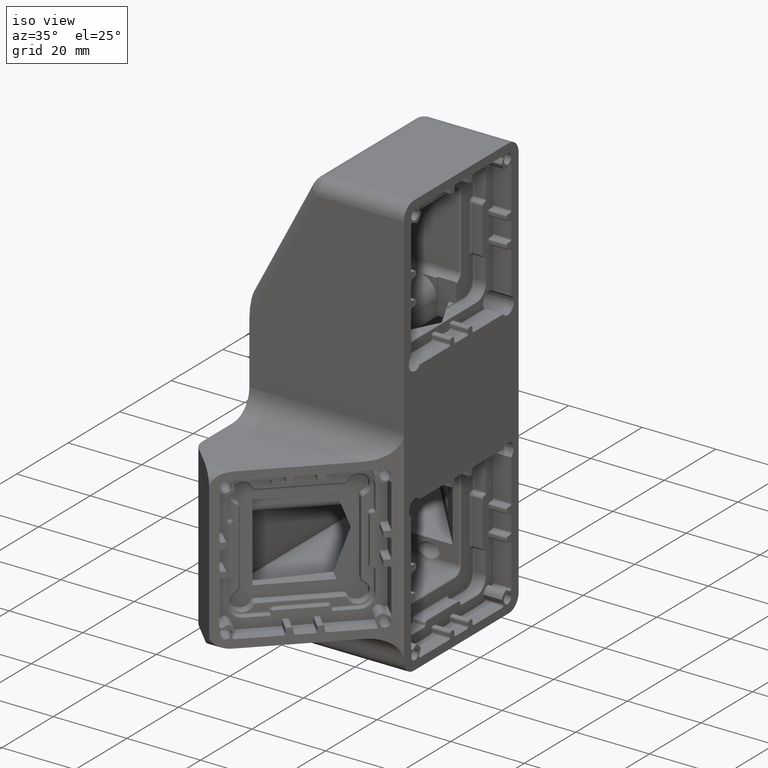
[diagram: clean part render]
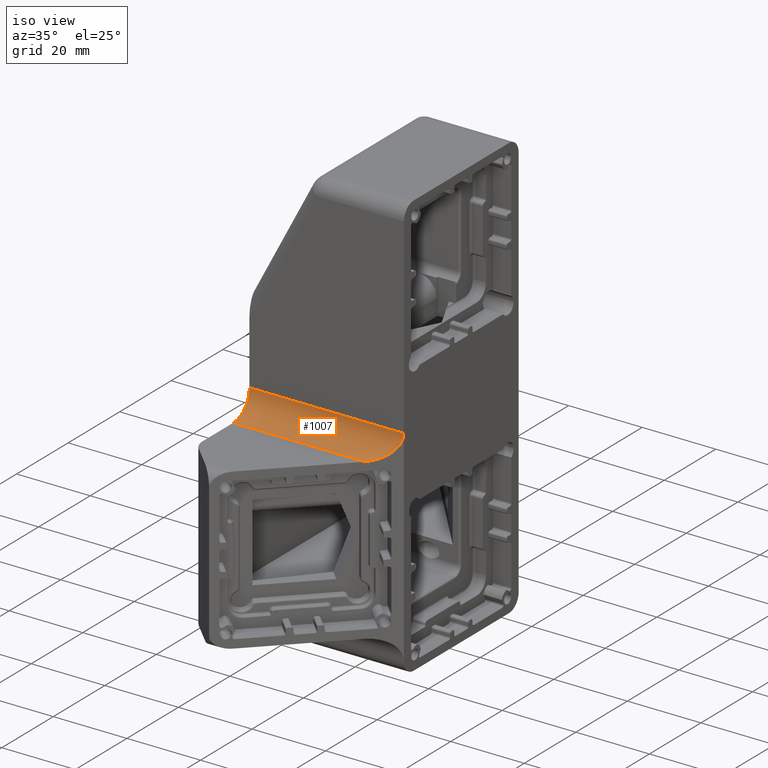
[diagram: same view with one face highlighted and labeled with its STEP entity id]
A machine part, iso view. The second image highlights one B-rep face of the part: STEP entity #1007.
In plain terms, the highlighted cylindrical surface (edge-blend (fillet) strip) has radius 6.25 mm, axis along (1, 0, 0).
Its self-contained STEP definition (entity closure, byte-faithful):
#1007=ADVANCED_FACE('',(#2103),#10574,.F.);
#2103=FACE_OUTER_BOUND('',#3199,.F.);
#3199=EDGE_LOOP('',(#4378,#4379,#4380,#4381));
#4378=ORIENTED_EDGE('',*,*,#14764,.F.);
#4379=ORIENTED_EDGE('',*,*,#14745,.F.);
#4380=ORIENTED_EDGE('',*,*,#14765,.T.);
#4381=ORIENTED_EDGE('',*,*,#14720,.F.);
#10574=CYLINDRICAL_SURFACE('',#24535,6.25);
#13299=B_SPLINE_CURVE_WITH_KNOTS('',3,(#34827,#34828,#34829,#34830,#34831,
#34832,#34833,#34834,#34835,#34836,#34837,#34838,#34839),.UNSPECIFIED.,.F.,
 .F.,(4,1,1,1,1,1,1,1,1,1,4),(0.,0.11673888254205,0.200106161151151,0.300138022496626,
0.400159954280286,0.500167321971055,0.600157109449256,0.700119458751657,
0.800044179004802,0.883328271425402,1.),.UNSPECIFIED.);
#13381=CIRCLE('',#23334,6.25);
#14720=EDGE_CURVE('',#23099,#23098,#13299,.T.);
#14745=EDGE_CURVE('',#23076,#23075,#13381,.T.);
#14764=EDGE_CURVE('',#23075,#23099,#17780,.T.);
#14765=EDGE_CURVE('',#23076,#23098,#17781,.T.);
#17780=LINE('',#34973,#19562);
#17781=LINE('',#34974,#19563);
#19562=VECTOR('',#25776,35.7500020317103);
#19563=VECTOR('',#25777,42.);
#23075=VERTEX_POINT('',#33859);
#23076=VERTEX_POINT('',#33860);
#23098=VERTEX_POINT('',#33882);
#23099=VERTEX_POINT('',#33883);
#23334=AXIS2_PLACEMENT_3D('',#34954,#25754,#25755);
#24535=AXIS2_PLACEMENT_3D('',#38614,#29863,#29864);
#25754=DIRECTION('',(-1.,0.,0.));
#25755=DIRECTION('',(0.,1.,0.));
#25776=DIRECTION('',(1.,0.,0.));
#25777=DIRECTION('',(1.,0.,0.));
#29863=DIRECTION('',(1.,0.,0.));
#29864=DIRECTION('',(0.,0.,-1.));
#33859=CARTESIAN_POINT('',(32.8649997447713,-228.526586041226,-4.2499928606736));
#33860=CARTESIAN_POINT('',(32.8649997447713,-222.276586041218,2.00000713932429));
#33882=CARTESIAN_POINT('',(74.8650002547604,-222.27658654916,2.00000143700863));
#33883=CARTESIAN_POINT('',(68.6150017771462,-228.526586040565,-4.24999286067359));
#34827=CARTESIAN_POINT('',(68.6150017784755,-228.526586039236,-4.24999286067345));
#34828=CARTESIAN_POINT('',(68.9432548847096,-228.198371381671,-4.24995870374369));
#34829=CARTESIAN_POINT('',(69.5057455684649,-227.635849330159,-4.20581509385924));
#34830=CARTESIAN_POINT('',(70.3408769518656,-226.800730326738,-4.02424099608693));
#34831=CARTESIAN_POINT('',(71.1151951804475,-226.026373119207,-3.75057765375271));
#34832=CARTESIAN_POINT('',(71.9085650912439,-225.233089024135,-3.33772372830554));
#34833=CARTESIAN_POINT('',(72.6618534358154,-224.479740899898,-2.79430446924661));
#34834=CARTESIAN_POINT('',(73.357022900705,-223.784561944788,-2.11200158754397));
#34835=CARTESIAN_POINT('',(73.9686488431974,-223.173029849447,-1.28284465653253));
#34836=CARTESIAN_POINT('',(74.4331925404313,-222.708331598946,-0.359369339060935));
#34837=CARTESIAN_POINT('',(74.7747108594747,-222.366887292463,0.741875588693253));
#34838=CARTESIAN_POINT('',(74.8650148818347,-222.276427970686,1.53536254127509));
#34839=CARTESIAN_POINT('',(74.8650017847337,-222.276586037119,1.99998433557781));
#34954=CARTESIAN_POINT('',(32.8649997447713,-228.526586041218,2.0000071393264));
#34973=CARTESIAN_POINT('',(32.8649997447713,-228.52658604123,-4.2499928606736));
#34974=CARTESIAN_POINT('',(32.8649997447713,-222.276586041218,2.00000713932429));
#38614=CARTESIAN_POINT('',(32.8649997447713,-228.526586041218,2.0000071393264));